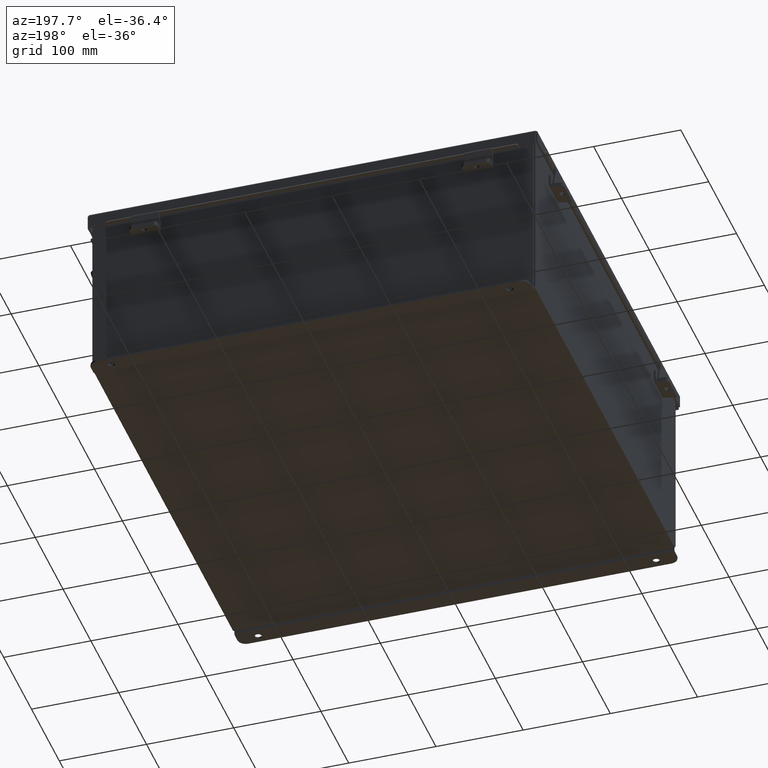
[diagram: clean part render]
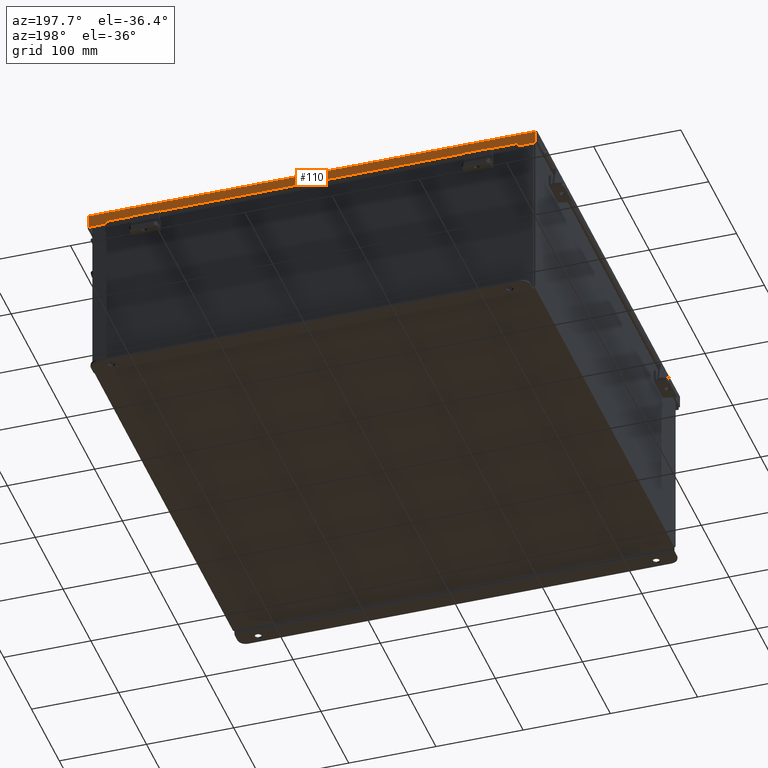
[diagram: same view with one face highlighted and labeled with its STEP entity id]
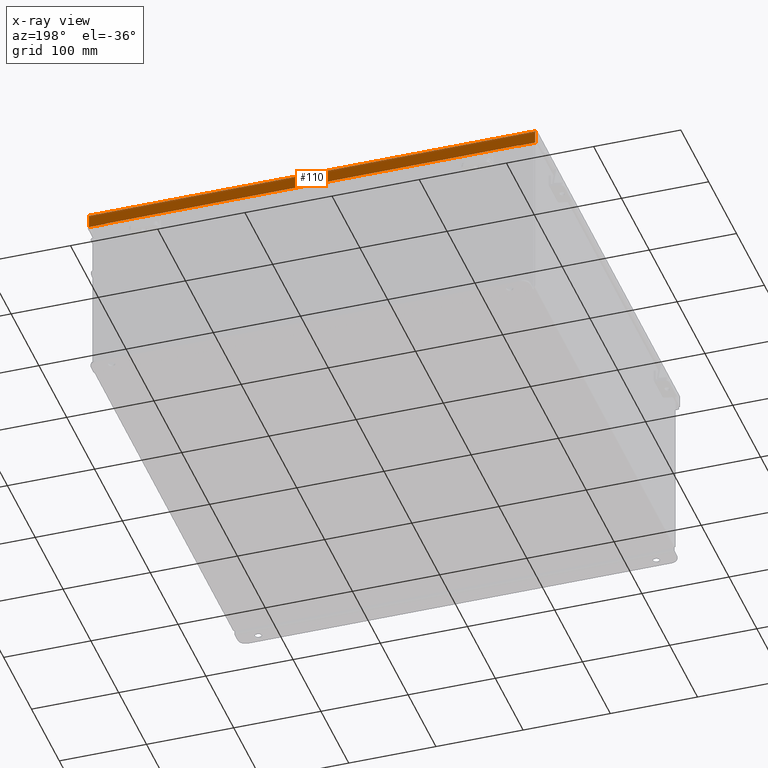
[diagram: x-ray of the same camera — body ghosted, the highlighted face saturated]
A machine part, auxiliary view. The second image highlights one B-rep face of the part: STEP entity #110.
The next image is the same camera in x-ray: the body ghosted, the highlighted face saturated — about 0% of this face is hidden behind the body in this view.
In plain terms, the highlighted planar face has unit normal (-0, -1, -0).
Its self-contained STEP definition (entity closure, byte-faithful):
#23 = CARTESIAN_POINT ( 'NONE',  ( 10.07447893218817100, 10.15624999999998400, 0.01300000000000010700 ) ) ;
#56 = CARTESIAN_POINT ( 'NONE',  ( 10.07447893218817100, 10.15624999999998600, 0.6123000000000005100 ) ) ;
#110 = ADVANCED_FACE ( 'NONE', ( #381 ), #8408, .F. ) ;
#118 = LINE ( 'NONE', #2993, #4198 ) ;
#200 = CARTESIAN_POINT ( 'NONE',  ( -2.134256245050205600E-018, 10.15624999999998600, 0.6122999999999994000 ) ) ;
#322 = DIRECTION ( 'NONE',  ( -0.0000000000000000000, 3.569293475308532400E-015, 1.000000000000000000 ) ) ;
#381 = FACE_OUTER_BOUND ( 'NONE', #2633, .T. ) ;
#818 = CARTESIAN_POINT ( 'NONE',  ( 9.324478932188171100, 10.15624999999998600, 0.6122999999999994000 ) ) ;
#821 = LINE ( 'NONE', #8954, #1535 ) ;
#1535 = VECTOR ( 'NONE', #9731, 39.37007874015748100 ) ;
#1579 = LINE ( 'NONE', #9531, #5639 ) ;
#1608 = EDGE_CURVE ( 'NONE', #3136, #7130, #8811, .T. ) ;
#1709 = VERTEX_POINT ( 'NONE', #7660 ) ;
#2062 = CARTESIAN_POINT ( 'NONE',  ( 9.324478932188171100, 10.15624999999998600, 0.6123000000000005100 ) ) ;
#2247 = DIRECTION ( 'NONE',  ( 7.009925220120712300E-014, -1.401985044024140700E-013, -1.000000000000000000 ) ) ;
#2338 = VERTEX_POINT ( 'NONE', #9489 ) ;
#2410 = ORIENTED_EDGE ( 'NONE', *, *, #5427, .F. ) ;
#2516 = DIRECTION ( 'NONE',  ( 1.000000000000000000, 3.215538059845590000E-030, 3.362274453740340600E-018 ) ) ;
#2633 = EDGE_LOOP ( 'NONE', ( #2410, #4425, #8511, #3203, #2839, #7089, #3907, #9783 ) ) ;
#2835 = VECTOR ( 'NONE', #2891, 39.37007874015748100 ) ;
#2839 = ORIENTED_EDGE ( 'NONE', *, *, #8802, .T. ) ;
#2891 = DIRECTION ( 'NONE',  ( 1.000000000000000000, 3.215538059845590000E-030, 3.362274453740340600E-018 ) ) ;
#2993 = CARTESIAN_POINT ( 'NONE',  ( 9.324478932188171100, 10.15624999999998400, 0.5967115427318793200 ) ) ;
#3136 = VERTEX_POINT ( 'NONE', #23 ) ;
#3203 = ORIENTED_EDGE ( 'NONE', *, *, #8548, .F. ) ;
#3275 = AXIS2_PLACEMENT_3D ( 'NONE', #5134, #3547, #8733 ) ;
#3547 = DIRECTION ( 'NONE',  ( -3.347543324056399800E-030, -1.000000000000000000, 3.569293475308532400E-015 ) ) ;
#3906 = DIRECTION ( 'NONE',  ( 0.0000000000000000000, 3.569293475308532400E-015, 1.000000000000000000 ) ) ;
#3907 = ORIENTED_EDGE ( 'NONE', *, *, #9419, .F. ) ;
#4198 = VECTOR ( 'NONE', #6784, 39.37007874015748100 ) ;
#4202 = VERTEX_POINT ( 'NONE', #6602 ) ;
#4331 = VECTOR ( 'NONE', #2247, 39.37007874015748100 ) ;
#4425 = ORIENTED_EDGE ( 'NONE', *, *, #6665, .T. ) ;
#4541 = EDGE_CURVE ( 'NONE', #6692, #9617, #6647, .T. ) ;
#4767 = VECTOR ( 'NONE', #3906, 39.37007874015748100 ) ;
#5032 = DIRECTION ( 'NONE',  ( -7.009925220120437100E-014, 1.401985044024085400E-013, 1.000000000000000000 ) ) ;
#5134 = CARTESIAN_POINT ( 'NONE',  ( 0.0000000000000000000, 10.15624999999998400, -3.715313271383398100E-014 ) ) ;
#5427 = EDGE_CURVE ( 'NONE', #6869, #1709, #6338, .T. ) ;
#5639 = VECTOR ( 'NONE', #5032, 39.37007874015748100 ) ;
#5668 = CARTESIAN_POINT ( 'NONE',  ( 10.07447893218817100, 10.15624999999998400, 0.0000000000000000000 ) ) ;
#6338 = LINE ( 'NONE', #818, #4331 ) ;
#6364 = EDGE_CURVE ( 'NONE', #1709, #2338, #118, .T. ) ;
#6602 = CARTESIAN_POINT ( 'NONE',  ( -10.07447893218816600, 10.15624999999998400, 0.01300000000000010700 ) ) ;
#6647 = LINE ( 'NONE', #9515, #2835 ) ;
#6665 = EDGE_CURVE ( 'NONE', #6869, #7130, #8566, .T. ) ;
#6692 = VERTEX_POINT ( 'NONE', #7952 ) ;
#6784 = DIRECTION ( 'NONE',  ( -1.000000000000000000, -3.215975411700707400E-030, -0.0000000000000000000 ) ) ;
#6869 = VERTEX_POINT ( 'NONE', #2062 ) ;
#6943 = CARTESIAN_POINT ( 'NONE',  ( -10.07447893218816600, 10.15624999999998400, -3.606039351636827200E-014 ) ) ;
#7089 = ORIENTED_EDGE ( 'NONE', *, *, #4541, .T. ) ;
#7130 = VERTEX_POINT ( 'NONE', #56 ) ;
#7434 = CARTESIAN_POINT ( 'NONE',  ( -9.324478932188165800, 10.15624999999998600, 0.6123000000000080600 ) ) ;
#7660 = CARTESIAN_POINT ( 'NONE',  ( 9.324478932188171100, 10.15624999999998600, 0.5967115427318793200 ) ) ;
#7952 = CARTESIAN_POINT ( 'NONE',  ( -10.07447893218816600, 10.15624999999998600, 0.6123000000000080600 ) ) ;
#8337 = VECTOR ( 'NONE', #2516, 39.37007874015748100 ) ;
#8408 = PLANE ( 'NONE',  #3275 ) ;
#8511 = ORIENTED_EDGE ( 'NONE', *, *, #1608, .F. ) ;
#8548 = EDGE_CURVE ( 'NONE', #4202, #3136, #821, .T. ) ;
#8566 = LINE ( 'NONE', #200, #8337 ) ;
#8733 = DIRECTION ( 'NONE',  ( 0.0000000000000000000, -3.569293475308532400E-015, -1.000000000000000000 ) ) ;
#8756 = LINE ( 'NONE', #6943, #4767 ) ;
#8802 = EDGE_CURVE ( 'NONE', #4202, #6692, #8756, .T. ) ;
#8811 = LINE ( 'NONE', #5668, #9282 ) ;
#8954 = CARTESIAN_POINT ( 'NONE',  ( 10.15625000000003600, 10.15624999999998400, 0.01299999999999901400 ) ) ;
#9282 = VECTOR ( 'NONE', #322, 39.37007874015748100 ) ;
#9419 = EDGE_CURVE ( 'NONE', #2338, #9617, #1579, .T. ) ;
#9489 = CARTESIAN_POINT ( 'NONE',  ( -9.324478932188164000, 10.15624999999998600, 0.5967115427318869800 ) ) ;
#9515 = CARTESIAN_POINT ( 'NONE',  ( -2.134256245050205600E-018, 10.15624999999998600, 0.6122999999999994000 ) ) ;
#9531 = CARTESIAN_POINT ( 'NONE',  ( -9.324478932188164000, 10.15624999999998400, 0.5967115427318869800 ) ) ;
#9617 = VERTEX_POINT ( 'NONE', #7434 ) ;
#9731 = DIRECTION ( 'NONE',  ( 1.000000000000000000, 3.215975411700707400E-030, -0.0000000000000000000 ) ) ;
#9783 = ORIENTED_EDGE ( 'NONE', *, *, #6364, .F. ) ;